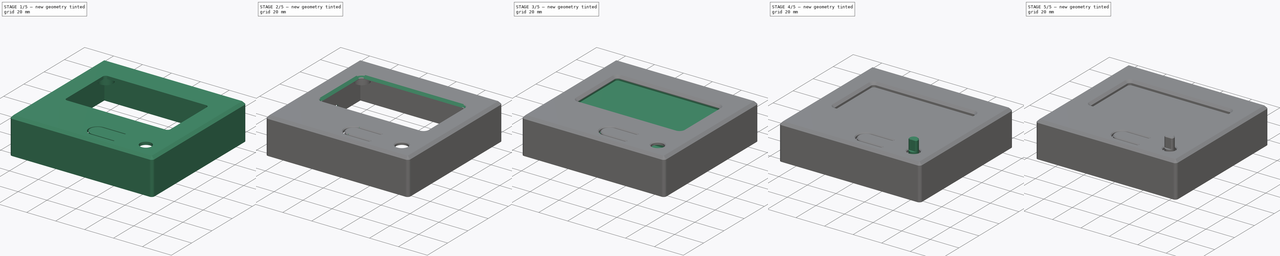
[diagram: build sequence overview — one tinted view per stage of 5, left to right]
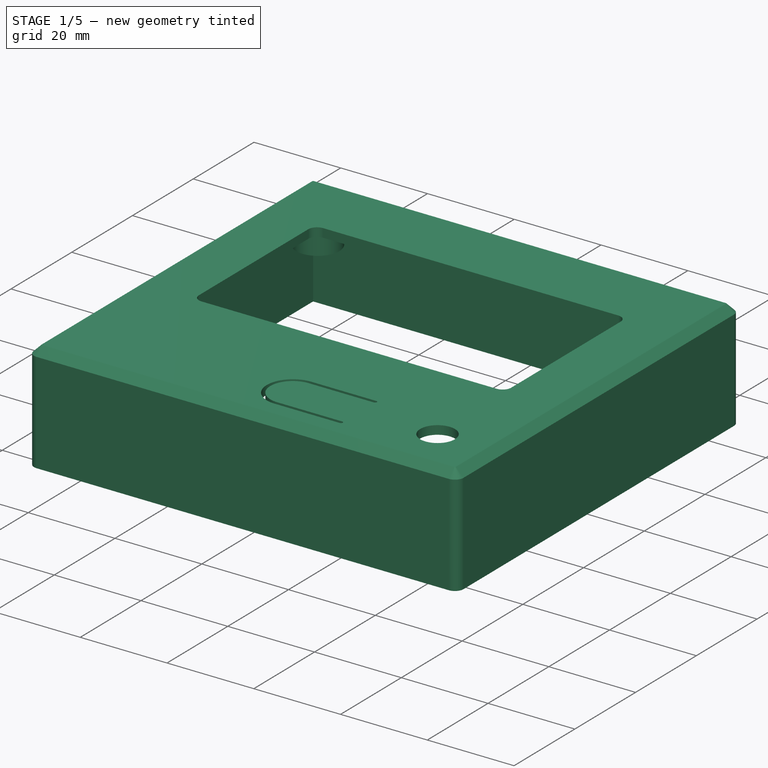
[diagram: stage 1 of 5 — iso view after this stage's code; geometry added in this stage tinted green]
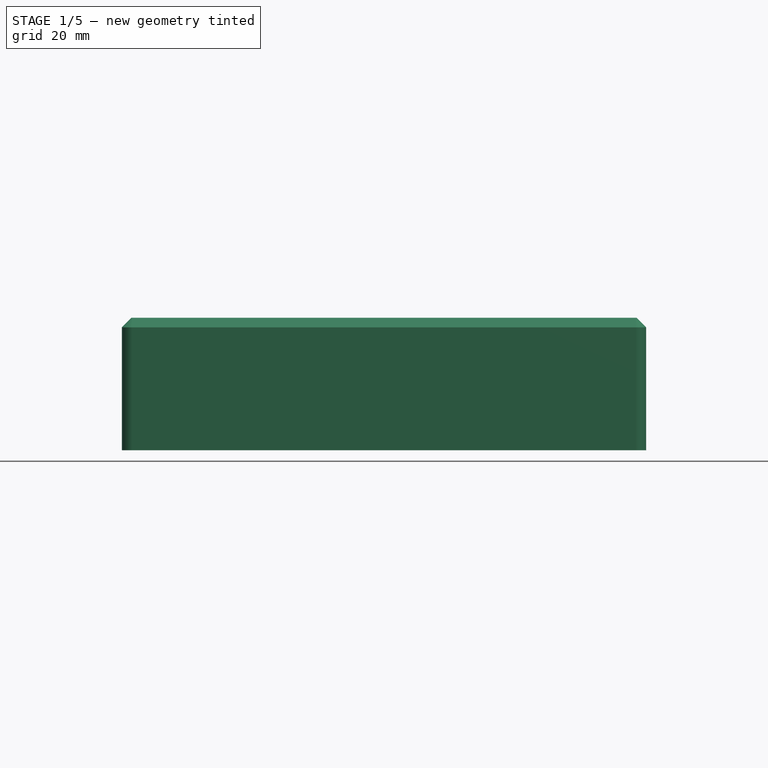
[diagram: stage 1 of 5 — front view after this stage's code; geometry added in this stage tinted green]
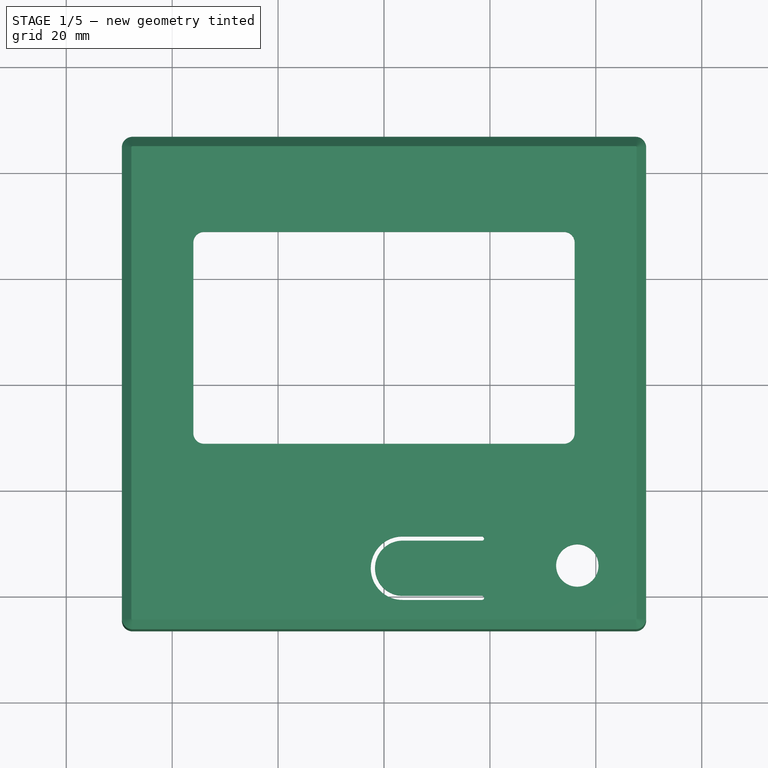
[diagram: stage 1 of 5 — top view after this stage's code; geometry added in this stage tinted green]
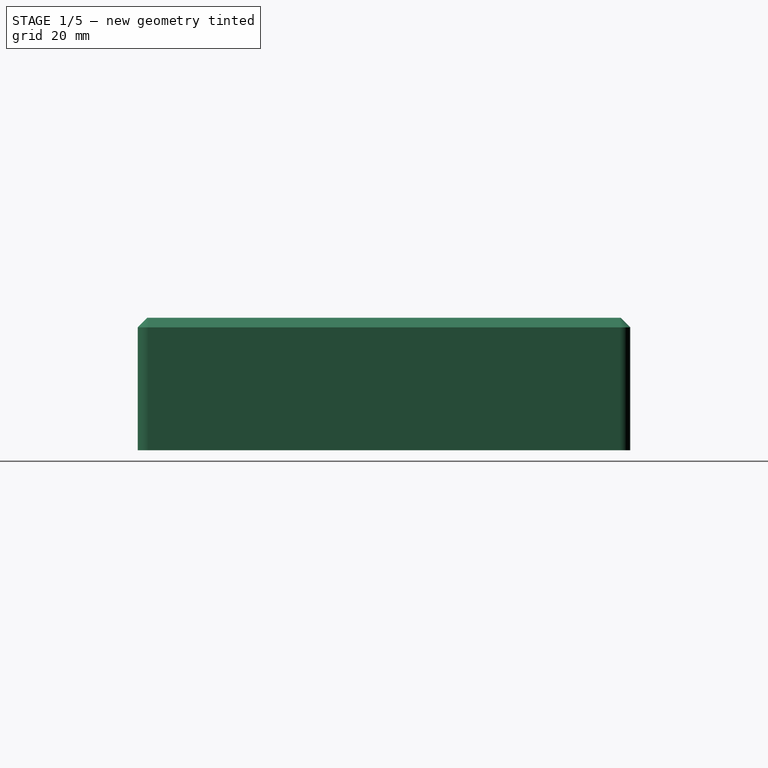
[diagram: stage 1 of 5 — right view after this stage's code; geometry added in this stage tinted green]
FCSTD DOCUMENT  (FreeCAD 0.14R3702 (Git))
Label: LCD-Case
License: CC-BY 3.0
LicenseURL: http://creativecommons.org/licenses/by/3.0/
objects: Sketcher::SketchObject×25, PartDesign::Pad×17, PartDesign::Pocket×8, PartDesign::Chamfer×7, PartDesign::Fillet×5
note: 87 computed .brp shape members not serialized (recipe doc carries the construction recipe); baked Part::Feature solids carry a one-line shape summary decoded from their .brp

FEATURE [Sketcher::SketchObject] Sketch001018
  Placement = pos=(0,0,15.2) rot=(0,0,1;0rad)
  sketch-geometry (4):
    g0: LineSegment StartX=-49.5 StartY=46.5 StartZ=0 EndX=49.5 EndY=46.5 EndZ=0
    g1: LineSegment StartX=49.5 StartY=46.5 StartZ=0 EndX=49.5 EndY=-46.5 EndZ=0
    g2: LineSegment StartX=49.5 StartY=-46.5 StartZ=0 EndX=-49.5 EndY=-46.5 EndZ=0
    g3: LineSegment StartX=-49.5 StartY=-46.5 StartZ=0 EndX=-49.5 EndY=46.5 EndZ=0
  constraints (12):
    c: Coincident(g0,g1)
    c: Coincident(g1,g2)
    c: Coincident(g2,g3)
    c: Coincident(g3,g0)
    c: Horizontal(g0)
    c: Horizontal(g2)
    c: Vertical(g1)
    c: Vertical(g3)
    c: DistanceX(g0) = 99
    c: Symmetric(g0,g0,g-2)
    c: DistanceY(g1) = -93
    c: Symmetric(g0,g1,g-1)
FEATURE [PartDesign::Pad] Pad013  label="Top-Plate"
  Length = 2
  Length2 = 100
  Placement = pos=(0,0,15.2) rot=(0,0,1;0rad)
  Sketch = -> Sketch001018
  Type = 0
FEATURE [Sketcher::SketchObject] Sketch001019
  ExternalGeometry = -> [Pad013]
  Placement = pos=(0,0,17.2) rot=(0,0,1;0rad)
  Support = -> Pad013 [Face6]
  sketch-geometry (21):
    g0: LineSegment StartX=-34 StartY=28.5 StartZ=0 EndX=34 EndY=28.5 EndZ=0
    g1: LineSegment StartX=36 StartY=26.5 StartZ=0 EndX=36 EndY=-9.5 EndZ=0
    g2: LineSegment StartX=34 StartY=-11.5 StartZ=0 EndX=-34 EndY=-11.5 EndZ=0
    g3: LineSegment StartX=-36 StartY=-9.5 StartZ=0 EndX=-36 EndY=26.5 EndZ=0
    g4: ArcOfCircle CenterX=34 CenterY=26.5 CenterZ=0 NormalX=0 NormalY=0 NormalZ=1 Radius=2 StartAngle=0 EndAngle=1.5708
    g5: ArcOfCircle CenterX=-34 CenterY=26.5 CenterZ=0 NormalX=0 NormalY=0 NormalZ=1 Radius=2 StartAngle=1.5708 EndAngle=3.14159
    g6: ArcOfCircle CenterX=-34 CenterY=-9.5 CenterZ=0 NormalX=0 NormalY=0 NormalZ=1 Radius=2 StartAngle=3.14159 EndAngle=4.71239
    g7: ArcOfCircle CenterX=34 CenterY=-9.5 CenterZ=0 NormalX=0 NormalY=0 NormalZ=1 Radius=2 StartAngle=4.71239 EndAngle=6.28319
    g8: Circle CenterX=36.5 CenterY=-34.5 CenterZ=0 NormalX=0 NormalY=0 NormalZ=1 Radius=4
    g9: ArcOfCircle CenterX=3.5 CenterY=-35 CenterZ=0 NormalX=0 NormalY=0 NormalZ=1 Radius=5.2 StartAngle=1.5708 EndAngle=4.71239
    g10: ArcOfCircle CenterX=3.5 CenterY=-35 CenterZ=0 NormalX=0 NormalY=0 NormalZ=1 Radius=6 StartAngle=1.5708 EndAngle=4.71239
    g11: LineSegment StartX=3.5 StartY=-29.8 StartZ=0 EndX=18.5 EndY=-29.8 EndZ=0
    g12: ArcOfCircle CenterX=18.5 CenterY=-29.4 CenterZ=0 NormalX=0 NormalY=0 NormalZ=1 Radius=0.4 StartAngle=4.71239 EndAngle=7.85398
    g13: LineSegment StartX=3.5 StartY=-29 StartZ=0 EndX=18.5 EndY=-29 EndZ=0
    g14: LineSegment StartX=3.5 StartY=-40.2 StartZ=0 EndX=18.5 EndY=-40.2 EndZ=0
    g15: LineSegment StartX=3.5 StartY=-41 StartZ=0 EndX=18.5 EndY=-41 EndZ=0
    g16: ArcOfCircle CenterX=18.5 CenterY=-40.6 CenterZ=0 NormalX=0 NormalY=0 NormalZ=1 Radius=0.4 StartAngle=4.71239 EndAngle=7.85398
    g17: LineSegment [constr] StartX=3.5 StartY=-29 StartZ=0 EndX=18.5 EndY=-29 EndZ=0
    g18: LineSegment [constr] StartX=18.5 StartY=-29 StartZ=0 EndX=18.5 EndY=-41 EndZ=0
    g19: LineSegment [constr] StartX=18.5 StartY=-41 StartZ=0 EndX=3.5 EndY=-41 EndZ=0
    g20: LineSegment [constr] StartX=3.5 StartY=-41 StartZ=0 EndX=3.5 EndY=-29 EndZ=0
  constraints (60):
    c: Horizontal(g0)
    c: Horizontal(g2)
    c: Vertical(g1)
    c: Vertical(g3)
    c: Tangent(g0,g4)
    c: Tangent(g1,g4)
    c: Tangent(g0,g5)
    c: Tangent(g3,g5)
    c: Tangent(g2,g6)
    c: Tangent(g3,g6)
    c: Tangent(g1,g7)
    c: Tangent(g2,g7)
    c: DistanceY(g1) = -36
    c: DistanceX(g0) = 68
    c: Radius(g5) = 2
    c: Equal(g5,g4)
    c: Equal(g4,g6)
    c: Equal(g6,g7)
    c: Symmetric(g0,g0,g-2)
    c: DistanceY(g-3,g0) = -18
    c: Radius(g8) = 4
    c: DistanceX(g8,g-4) = 13
    c: Distance(g9,g-4) = 46
    c: DistanceY(g9,g-4) = -11.5
    c: Coincident(g11,g9)
    c: Horizontal(g11)
    c: Coincident(g12,g11)
    c: Coincident(g13,g10)
    c: Coincident(g14,g9)
    c: Horizontal(g14)
    c: Coincident(g15,g10)
    c: Horizontal(g15)
    c: Coincident(g16,g15)
    c: Coincident(g16,g14)
    c: Coincident(g17,g18)
    c: Coincident(g18,g19)
    c: Coincident(g19,g20)
    c: Coincident(g20,g17)
    c: Horizontal(g17)
    c: Horizontal(g19)
    c: Vertical(g18)
    c: Vertical(g20)
    c: DistanceX(g17) = 15
    c: DistanceY(g18) = -12
    c: Equal(g16,g12)
    c: Coincident(g15,g18)
    c: Coincident(g10,g17)
    c: Coincident(g13,g12)
    c: Tangent(g13,g12)
    c: Tangent(g11,g12)
    c: Coincident(g12,g17)
    c: Tangent(g14,g16)
    c: Tangent(g15,g16)
    c: Tangent(g10,g15)
    c: Tangent(g9,g14)
    c: Tangent(g10,g13)
    c: Tangent(g9,g11)
    c: Coincident(g10,g9)
    c: Radius(g12) = 0.4
    c: DistanceY(g8,g-4) = -12
FEATURE [PartDesign::Pocket] Pocket004  label="Top-Holes"
  Length = 5
  Placement = pos=(0,0,15.2) rot=(0,0,1;0rad)
  Sketch = -> Sketch001019
  Type = 1
FEATURE [Sketcher::SketchObject] Sketch001020
  Placement = pos=(0,0,15.2) rot=(1,0,0;3.14159rad)
  Support = -> Pocket004 [Face4]
  sketch-geometry (8):
    g0: LineSegment StartX=-47.5 StartY=44.5 StartZ=0 EndX=47.5 EndY=44.5 EndZ=0
    g1: LineSegment StartX=47.5 StartY=44.5 StartZ=0 EndX=47.5 EndY=-44.5 EndZ=0
    g2: LineSegment StartX=47.5 StartY=-44.5 StartZ=0 EndX=-47.5 EndY=-44.5 EndZ=0
    g3: LineSegment StartX=-47.5 StartY=-44.5 StartZ=0 EndX=-47.5 EndY=44.5 EndZ=0
    g4: LineSegment StartX=-49.5 StartY=46.5 StartZ=0 EndX=49.5 EndY=46.5 EndZ=0
    g5: LineSegment StartX=49.5 StartY=46.5 StartZ=0 EndX=49.5 EndY=-46.5 EndZ=0
    g6: LineSegment StartX=49.5 StartY=-46.5 StartZ=0 EndX=-49.5 EndY=-46.5 EndZ=0
    g7: LineSegment StartX=-49.5 StartY=-46.5 StartZ=0 EndX=-49.5 EndY=46.5 EndZ=0
  constraints (20):
    c: Coincident(g0,g1)
    c: Coincident(g1,g2)
    c: Coincident(g2,g3)
    c: Coincident(g3,g0)
    c: Horizontal(g0)
    c: Horizontal(g2)
    c: Vertical(g1)
    c: Vertical(g3)
    c: Coincident(g4,g5)
    c: Coincident(g5,g6)
    c: Coincident(g6,g7)
    c: Coincident(g7,g4)
    c: Horizontal(g4)
    c: Horizontal(g6)
    c: Vertical(g5)
    c: Vertical(g7)
    c: DistanceY(g0,g4) = 2
    c: DistanceX(g0,g4) = 2
    c: DistanceY(g6,g2) = 2
    c: DistanceX(g2,g6) = -2
FEATURE [PartDesign::Pad] Pad014  label="Sides"
  Length = 23
  Length2 = 100
  Placement = pos=(0,0,15.2) rot=(0,0,1;0rad)
  Sketch = -> Sketch001020
  Type = 0
FEATURE [Sketcher::SketchObject] Sketch001021
  ExternalGeometry = -> [Pad014]
  Placement = pos=(0,0,15.2) rot=(1,0,0;3.14159rad)
  Support = -> Pad014 [Face27]
  sketch-geometry (14):
    g0: ArcOfCircle CenterX=-44 CenterY=-41 CenterZ=0 NormalX=0 NormalY=0 NormalZ=1 Radius=5 StartAngle=5.50779 EndAngle=8.62938
    g1: LineSegment StartX=-47.5 StartY=-37.4293 StartZ=0 EndX=-47.5 EndY=-44.5 EndZ=0
    g2: LineSegment StartX=-47.5 StartY=-44.5 StartZ=0 EndX=-40.4293 EndY=-44.5 EndZ=0
    g3: ArcOfCircle CenterX=-44 CenterY=24 CenterZ=0 NormalX=0 NormalY=0 NormalZ=1 Radius=5 StartAngle=3.93699 EndAngle=8.62938
    g4: LineSegment StartX=-47.5 StartY=27.5707 StartZ=0 EndX=-47.5 EndY=20.4293 EndZ=0
    g5: ArcOfCircle CenterX=44 CenterY=24 CenterZ=0 NormalX=0 NormalY=0 NormalZ=1 Radius=5 StartAngle=0.795399 EndAngle=5.48779
    g6: LineSegment StartX=47.5 StartY=27.5707 StartZ=0 EndX=47.5 EndY=20.4293 EndZ=0
    g7: ArcOfCircle CenterX=44 CenterY=-41 CenterZ=0 NormalX=0 NormalY=0 NormalZ=1 Radius=5 StartAngle=0.795399 EndAngle=3.91699
    g8: LineSegment StartX=47.5 StartY=-37.4293 StartZ=0 EndX=47.5 EndY=-44.5 EndZ=0
    g9: LineSegment StartX=47.5 StartY=-44.5 StartZ=0 EndX=40.4293 EndY=-44.5 EndZ=0
    g10: LineSegment [constr] StartX=-44 StartY=24 StartZ=0 EndX=44 EndY=24 EndZ=0
    g11: LineSegment [constr] StartX=44 StartY=24 StartZ=0 EndX=44 EndY=-41 EndZ=0
    g12: LineSegment [constr] StartX=44 StartY=-41 StartZ=0 EndX=-44 EndY=-41 EndZ=0
    g13: LineSegment [constr] StartX=-44 StartY=-41 StartZ=0 EndX=-44 EndY=24 EndZ=0
  constraints (41):
    c: Coincident(g1,g0)
    c: Vertical(g1)
    c: Coincident(g2,g1)
    c: Coincident(g2,g0)
    c: Horizontal(g2)
    c: Coincident(g4,g3)
    c: Coincident(g4,g3)
    c: Vertical(g4)
    c: Coincident(g6,g5)
    c: Coincident(g6,g5)
    c: Vertical(g6)
    c: Coincident(g8,g9)
    c: Coincident(g9,g7)
    c: Vertical(g8)
    c: Horizontal(g9)
    c: Coincident(g1,g-3)
    c: Radius(g0) = 5
    c: Coincident(g10,g11)
    c: Coincident(g11,g12)
    c: Coincident(g12,g13)
    c: Coincident(g13,g10)
    c: Horizontal(g10)
    c: Horizontal(g12)
    c: Vertical(g11)
    c: Vertical(g13)
    c: DistanceY(g13) = 65
    c: DistanceX(g10) = 88
    c: DistanceX(g1,g12) = 3.5
    c: DistanceY(g12,g1) = -3.5
    c: Coincident(g0,g12)
    c: Equal(g0,g3)
    c: Equal(g3,g5)
    c: Equal(g5,g7)
    c: Coincident(g3,g10)
    c: PointOnObject(g3,g-3)
    c: Coincident(g8,g7)
    c: Coincident(g8,g-4)
    c: Equal(g9,g8)
    c: Coincident(g7,g11)
    c: PointOnObject(g5,g-4)
    c: Coincident(g5,g10)
FEATURE [PartDesign::Pad] Pad015  label="PCB-Mounts"
  Length = 8.9
  Length2 = 100
  Placement = pos=(0,0,15.2) rot=(0,0,1;0rad)
  Sketch = -> Sketch001021
  Type = 0
FEATURE [Sketcher::SketchObject] Sketch001022
  ExternalGeometry = -> [Pad015]
  Placement = pos=(0,0,6.3) rot=(1,0,0;3.14159rad)
  Support = -> Pad015 [Face38]
  sketch-geometry (4):
    g0: Circle CenterX=-44 CenterY=24 CenterZ=0 NormalX=0 NormalY=0 NormalZ=1 Radius=1.3
    g1: Circle CenterX=44 CenterY=24 CenterZ=0 NormalX=0 NormalY=0 NormalZ=1 Radius=1.3
    g2: Circle CenterX=-44 CenterY=-41 CenterZ=0 NormalX=0 NormalY=0 NormalZ=1 Radius=1.3
    g3: Circle CenterX=44 CenterY=-41 CenterZ=0 NormalX=0 NormalY=0 NormalZ=1 Radius=1.3
  constraints (8):
    c: Coincident(g0,g-3)
    c: Coincident(g1,g-4)
    c: Coincident(g3,g-5)
    c: Radius(g0) = 1.3
    c: Equal(g1,g0)
    c: Equal(g0,g2)
    c: Equal(g2,g3)
    c: Coincident(g2,g-6)
FEATURE [PartDesign::Pocket] Pocket005  label="PCB-Mount-Holes"
  Length = 8.9
  Placement = pos=(0,0,15.2) rot=(0,0,1;0rad)
  Sketch = -> Sketch001022
  Type = 0
FEATURE [PartDesign::Fillet] Fillet004
  Base = -> Pocket005 [Edge68,Edge25,Edge22,Edge66,Edge24,Edge64,Edge28,Edge69]
  Placement = pos=(0,0,15.2) rot=(0,0,1;0rad)
  Radius = 2
FEATURE [PartDesign::Chamfer] Chamfer001
  Base = -> Fillet004 [Edge8,Edge6,Edge4,Edge7,Edge5,Edge3,Edge1,Edge2]
  Placement = pos=(0,0,15.2) rot=(0,0,1;0rad)
  Size = 1.8
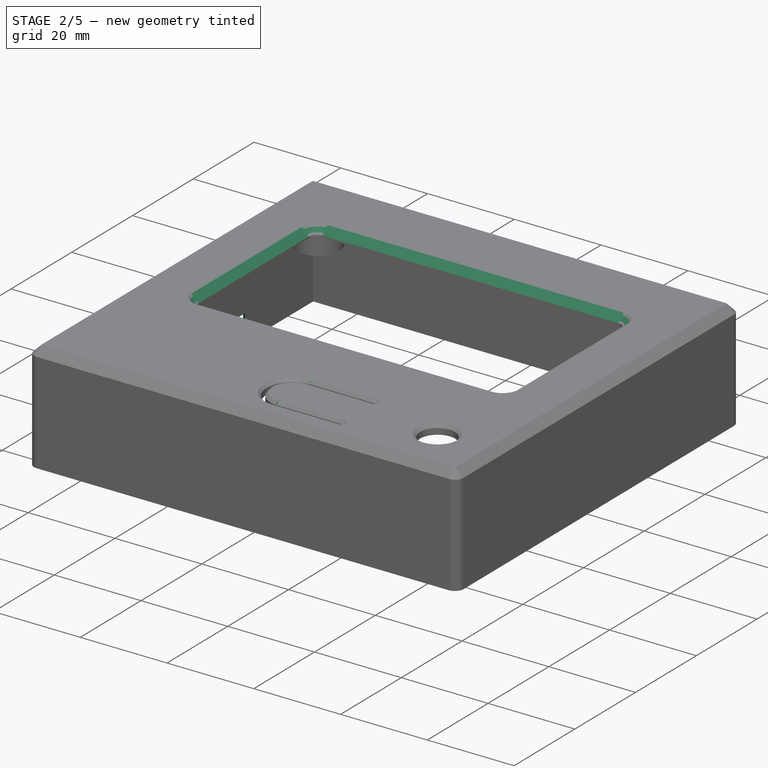
[diagram: stage 2 of 5 — iso view after this stage's code; geometry added in this stage tinted green]
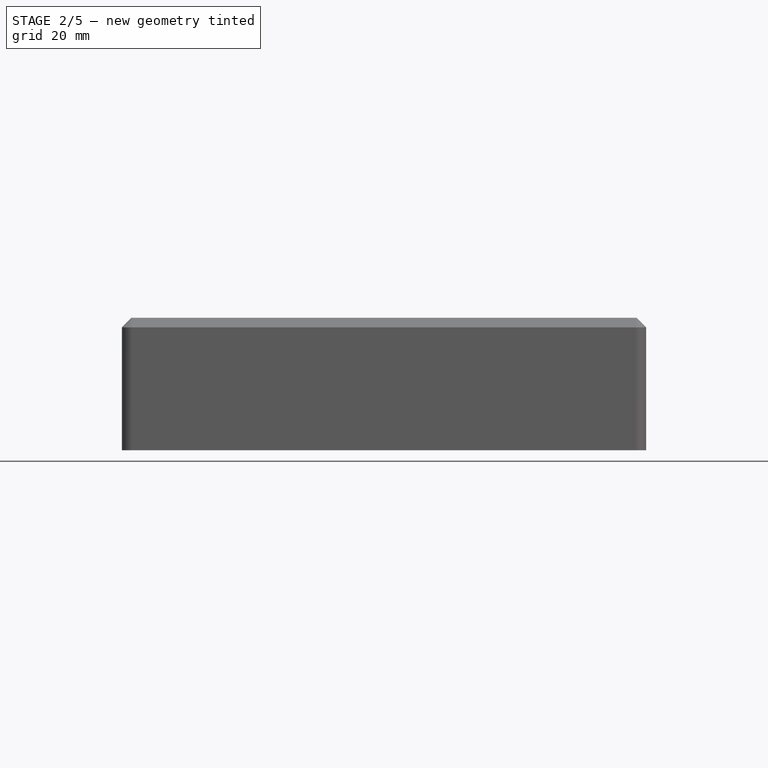
[diagram: stage 2 of 5 — front view after this stage's code; geometry added in this stage tinted green]
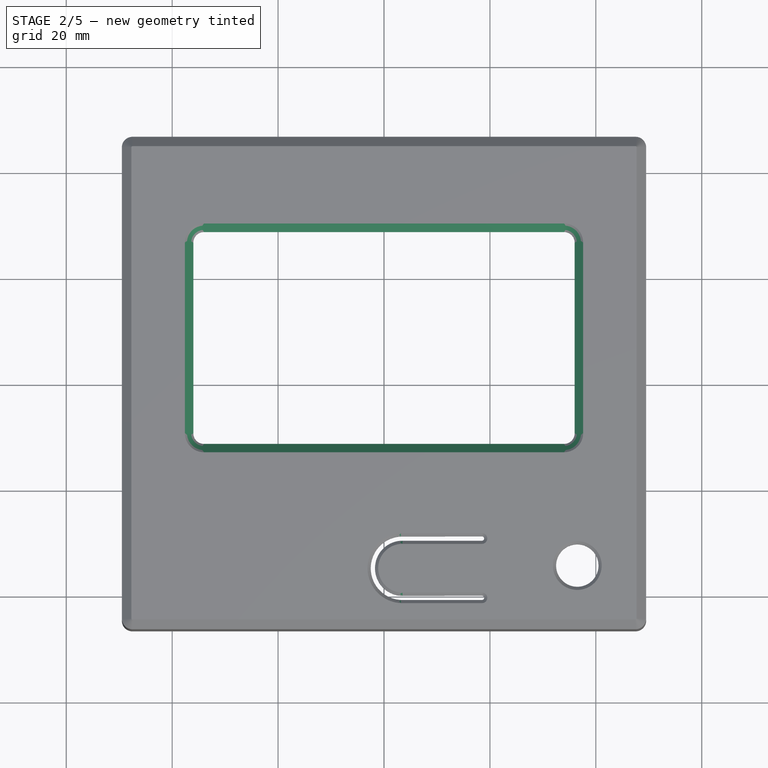
[diagram: stage 2 of 5 — top view after this stage's code; geometry added in this stage tinted green]
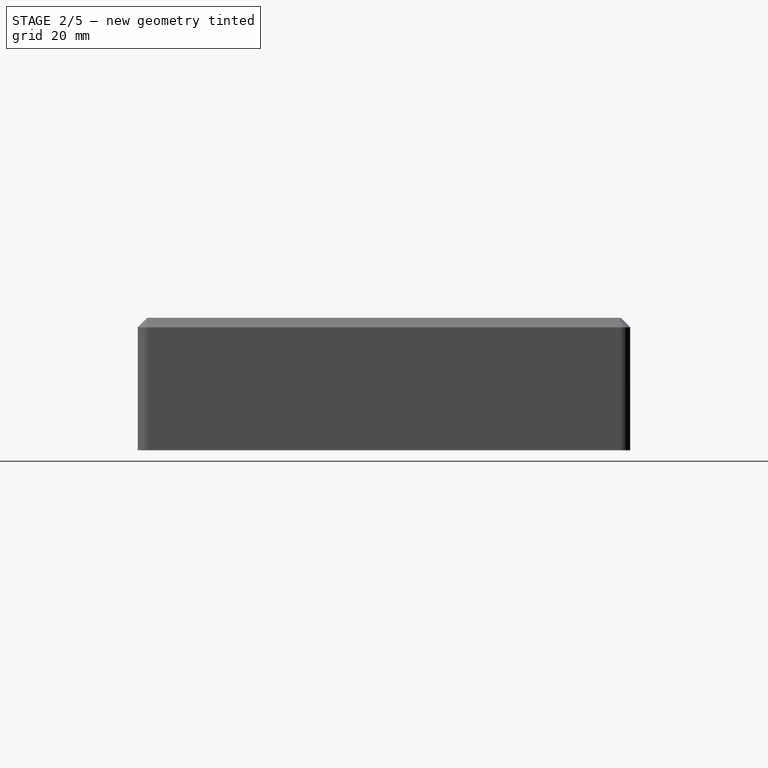
[diagram: stage 2 of 5 — right view after this stage's code; geometry added in this stage tinted green]
FEATURE [PartDesign::Chamfer] Chamfer002  label="Case-Fillets"
  Base = -> Chamfer001 [Edge24,Edge23,Edge22,Edge21,Edge17,Edge18,Edge19,Edge20]
  Placement = pos=(0,0,15.2) rot=(0,0,1;0rad)
  Size = 1.6
FEATURE [Sketcher::SketchObject] Sketch001023
  ExternalGeometry = -> [Chamfer002]
  Placement = pos=(0,0,15.2) rot=(1,0,0;3.14159rad)
  Support = -> Chamfer002 [Face43]
  sketch-geometry (1):
    g0: Circle CenterX=3.5 CenterY=35 CenterZ=0 NormalX=0 NormalY=0 NormalZ=1 Radius=4
  constraints (2):
    c: Coincident(g0,g-3)
    c: Radius(g0) = 4
FEATURE [PartDesign::Pad] Pad016  label="Emergency-Button"
  Length = 10
  Length2 = 100
  Placement = pos=(0,0,15.2) rot=(0,0,1;0rad)
  Sketch = -> Sketch001023
  Type = 0
FEATURE [PartDesign::Chamfer] Chamfer003
  Base = -> Pad016 [Edge2]
  Placement = pos=(0,0,15.2) rot=(0,0,1;0rad)
  Size = 1
FEATURE [Sketcher::SketchObject] Sketch001024
  ExternalGeometry = -> [Chamfer003]
  Placement = pos=(0,0,15.2) rot=(1,0,0;3.14159rad)
  Support = -> Chamfer003 [Face4]
  sketch-geometry (4):
    g0: LineSegment StartX=11.5 StartY=44.5 StartZ=0 EndX=31.5 EndY=44.5 EndZ=0
    g1: LineSegment StartX=31.5 StartY=44.5 StartZ=0 EndX=31.5 EndY=24.5 EndZ=0
    g2: LineSegment StartX=31.5 StartY=24.5 StartZ=0 EndX=11.5 EndY=24.5 EndZ=0
    g3: LineSegment StartX=11.5 StartY=24.5 StartZ=0 EndX=11.5 EndY=44.5 EndZ=0
  constraints (12):
    c: Coincident(g0,g1)
    c: Coincident(g1,g2)
    c: Coincident(g2,g3)
    c: Coincident(g3,g0)
    c: Horizontal(g0)
    c: Horizontal(g2)
    c: Vertical(g1)
    c: Vertical(g3)
    c: DistanceX(g2) = -20
    c: DistanceY(g1) = -20
    c: PointOnObject(g0,g-3)
    c: DistanceX(g-3,g0) = -16
FEATURE [PartDesign::Pocket] Pocket006
  Length = 1.2
  Placement = pos=(0,0,15.2) rot=(0,0,1;0rad)
  Sketch = -> Sketch001024
  Type = 0
FEATURE [Sketcher::SketchObject] Sketch001025
  Placement = pos=(0,0,-7.8) rot=(1,0,0;3.14159rad)
  Support = -> Pocket006 [Face71]
  sketch-geometry (4):
    g0: LineSegment StartX=-50.5 StartY=6 StartZ=0 EndX=-46.5 EndY=6 EndZ=0
    g1: LineSegment StartX=-46.5 StartY=6 StartZ=0 EndX=-46.5 EndY=-22.5 EndZ=0
    g2: LineSegment StartX=-46.5 StartY=-22.5 StartZ=0 EndX=-50.5 EndY=-22.5 EndZ=0
    g3: LineSegment StartX=-50.5 StartY=-22.5 StartZ=0 EndX=-50.5 EndY=6 EndZ=0
  constraints (10):
    c: Coincident(g0,g1)
    c: Coincident(g1,g2)
    c: Coincident(g2,g3)
    c: Coincident(g3,g0)
    c: Horizontal(g0)
    c: Horizontal(g2)
    c: Vertical(g1)
    c: Vertical(g3)
    c: DistanceY(g3) = 28.5
    c: DistanceX(g0) = 4
FEATURE [PartDesign::Pocket] Pocket007
  Length = 6.1
  Placement = pos=(0,0,15.2) rot=(0,0,1;0rad)
  Sketch = -> Sketch001025
  Type = 0
FEATURE [PartDesign::Chamfer] Chamfer004
  Base = -> Pocket007 [Edge161,Edge162,Edge163]
  Placement = pos=(0,0,15.2) rot=(0,0,1;0rad)
  Size = 1.8
FEATURE [PartDesign::Chamfer] Chamfer005
  Base = -> Chamfer004 [Edge148,Edge141,Edge142,Edge143,Edge147,Edge146,Edge144,Edge145]
  Placement = pos=(0,0,15.2) rot=(0,0,1;0rad)
  Size = 0.6
FEATURE [PartDesign::Chamfer] Chamfer006
  Base = -> Chamfer005 [Edge25]
  Placement = pos=(0,0,15.2) rot=(0,0,1;0rad)
  Size = 0.6
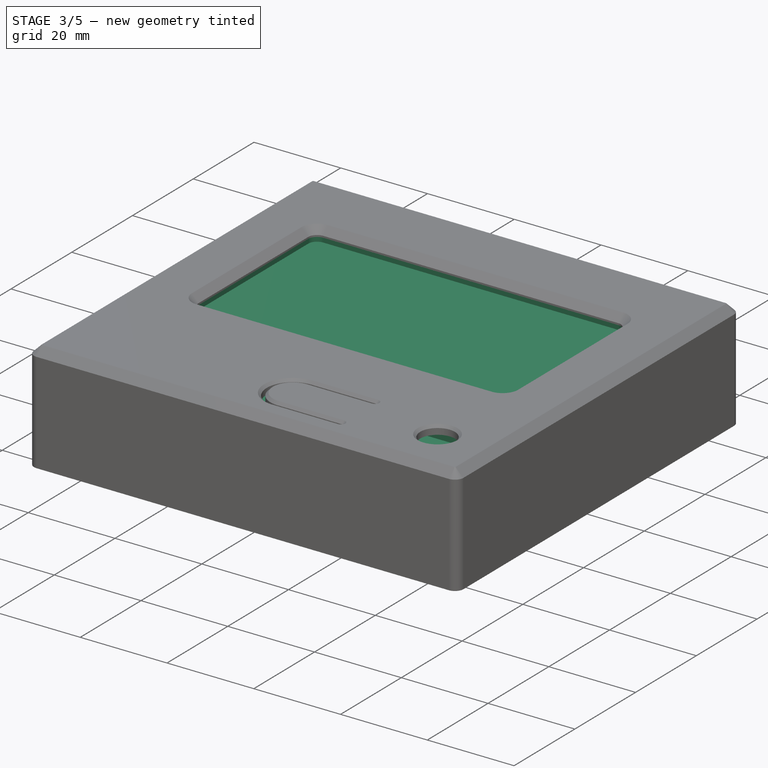
[diagram: stage 3 of 5 — iso view after this stage's code; geometry added in this stage tinted green]
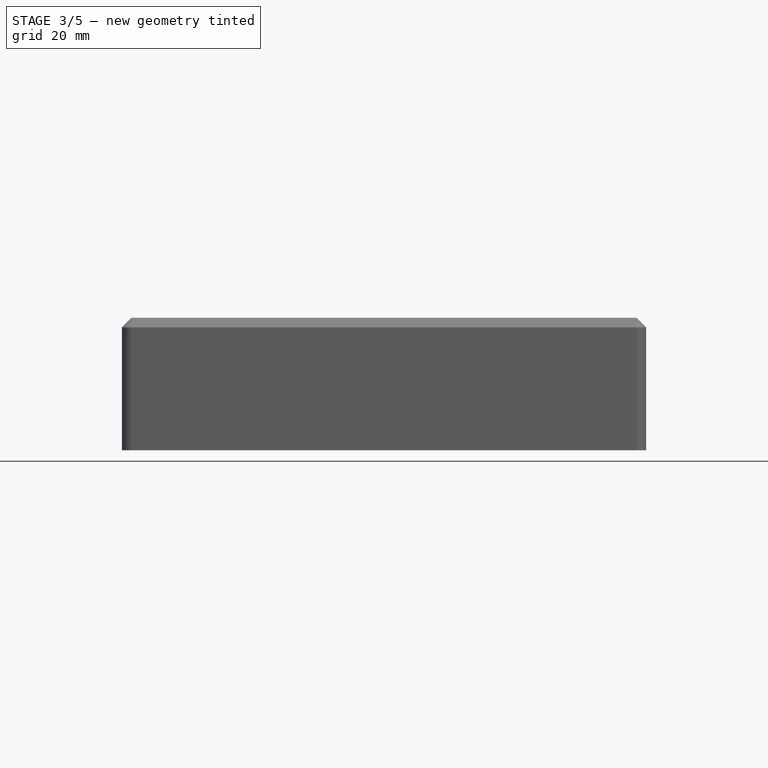
[diagram: stage 3 of 5 — front view after this stage's code; geometry added in this stage tinted green]
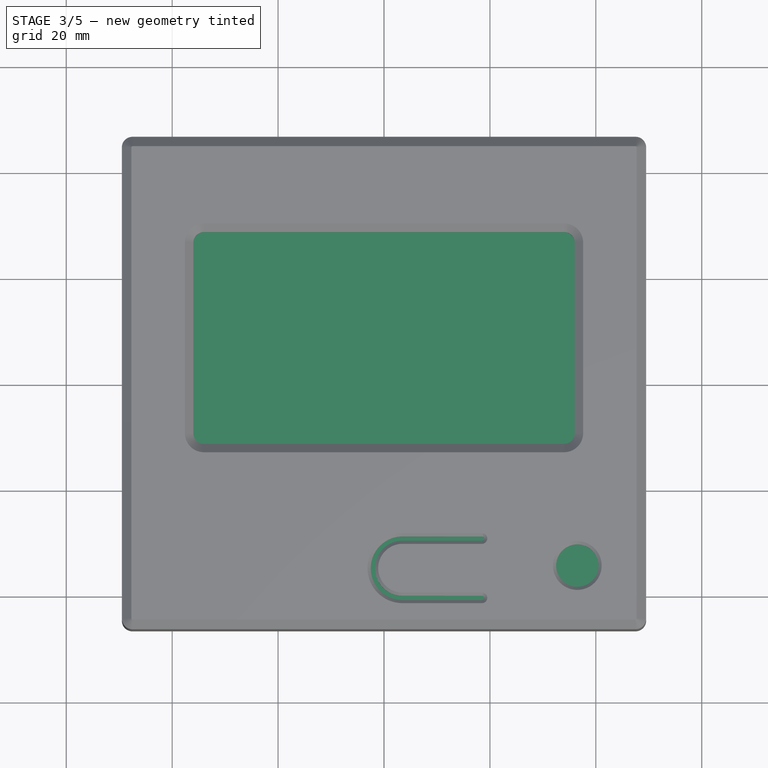
[diagram: stage 3 of 5 — top view after this stage's code; geometry added in this stage tinted green]
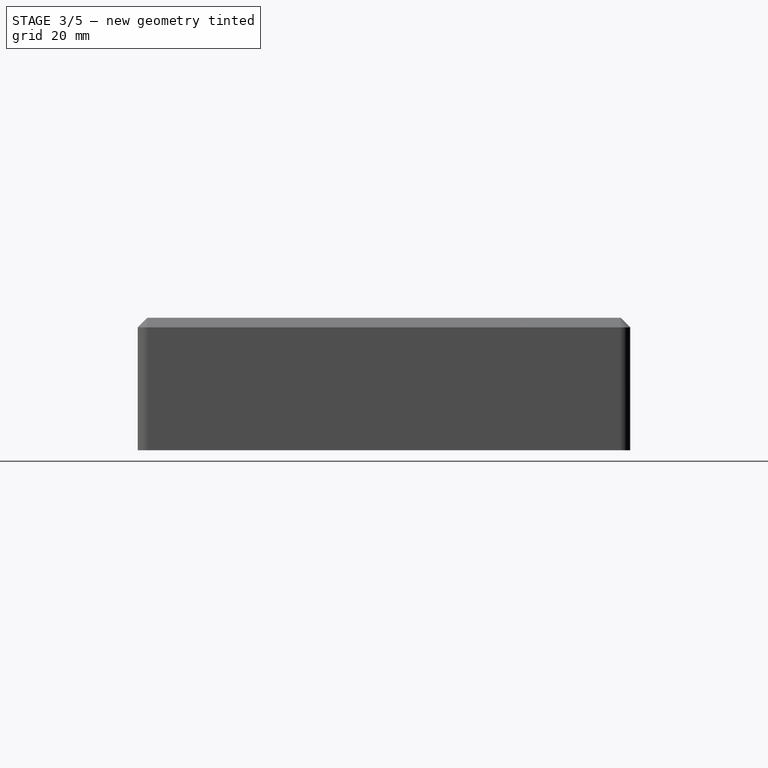
[diagram: stage 3 of 5 — right view after this stage's code; geometry added in this stage tinted green]
FEATURE [Sketcher::SketchObject] Sketch
  sketch-geometry (12):
    g0: LineSegment StartX=-46.5 StartY=43.5 StartZ=0 EndX=46.5 EndY=43.5 EndZ=0
    g1: LineSegment StartX=46.5 StartY=43.5 StartZ=0 EndX=46.5 EndY=-43.5 EndZ=0
    g2: LineSegment StartX=46.5 StartY=-43.5 StartZ=0 EndX=-46.5 EndY=-43.5 EndZ=0
    g3: LineSegment StartX=-46.5 StartY=-43.5 StartZ=0 EndX=-46.5 EndY=43.5 EndZ=0
    g4: Circle CenterX=-44 CenterY=41 CenterZ=0 NormalX=0 NormalY=0 NormalZ=1 Radius=1.5
    g5: Circle CenterX=44 CenterY=41 CenterZ=0 NormalX=0 NormalY=0 NormalZ=1 Radius=1.5
    g6: Circle CenterX=-44 CenterY=-24 CenterZ=0 NormalX=0 NormalY=0 NormalZ=1 Radius=1.5
    g7: Circle CenterX=44 CenterY=-24 CenterZ=0 NormalX=0 NormalY=0 NormalZ=1 Radius=1.5
    g8: LineSegment [constr] StartX=-44 StartY=41 StartZ=0 EndX=44 EndY=41 EndZ=0
    g9: LineSegment [constr] StartX=44 StartY=41 StartZ=0 EndX=44 EndY=-24 EndZ=0
    g10: LineSegment [constr] StartX=44 StartY=-24 StartZ=0 EndX=-44 EndY=-24 EndZ=0
    g11: LineSegment [constr] StartX=-44 StartY=-24 StartZ=0 EndX=-44 EndY=41 EndZ=0
  constraints (31):
    c: Coincident(g0,g1)
    c: Coincident(g1,g2)
    c: Coincident(g2,g3)
    c: Coincident(g3,g0)
    c: Horizontal(g0)
    c: Horizontal(g2)
    c: Vertical(g1)
    c: Vertical(g3)
    c: DistanceX(g0) = 93
    c: Symmetric(g0,g1,g-1)
    c: Radius(g4) = 1.5
    c: Equal(g4,g5)
    c: Equal(g5,g7)
    c: Equal(g7,g6)
    c: Distance(g4,g3) = 2.5
    c: Coincident(g8,g9)
    c: Coincident(g9,g10)
    c: Coincident(g10,g11)
    c: Coincident(g11,g8)
    c: Horizontal(g8)
    c: Horizontal(g10)
    c: Vertical(g9)
    c: Vertical(g11)
    c: Coincident(g8,g4)
    c: Coincident(g9,g7)
    c: Coincident(g6,g10)
    c: Coincident(g8,g5)
    c: DistanceX(g8) = 88
    c: DistanceY(g11) = 65
    c: Distance(g4,g0) = 2.5
    c: DistanceY(g3) = 87
FEATURE [PartDesign::Pad] Pad  label="White-Circuit-Board"
  Length = 1.7
  Length2 = 100
  Reversed = true
  Sketch = -> Sketch
  Type = 0
FEATURE [Sketcher::SketchObject] Sketch001004
  Placement = pos=(0,0,4.6) rot=(0,0,1;0rad)
  sketch-geometry (12):
    g0: LineSegment StartX=-46.5 StartY=43.5 StartZ=0 EndX=46.5 EndY=43.5 EndZ=0
    g1: LineSegment StartX=46.5 StartY=43.5 StartZ=0 EndX=46.5 EndY=-26.5 EndZ=0
    g2: LineSegment StartX=46.5 StartY=-26.5 StartZ=0 EndX=-46.5 EndY=-26.5 EndZ=0
    g3: LineSegment StartX=-46.5 StartY=-26.5 StartZ=0 EndX=-46.5 EndY=43.5 EndZ=0
    g4: Circle CenterX=-44 CenterY=41 CenterZ=0 NormalX=0 NormalY=0 NormalZ=1 Radius=1.5
    g5: Circle CenterX=44 CenterY=41 CenterZ=0 NormalX=0 NormalY=0 NormalZ=1 Radius=1.5
    g6: Circle CenterX=-44 CenterY=-24 CenterZ=0 NormalX=0 NormalY=0 NormalZ=1 Radius=1.5
    g7: Circle CenterX=44 CenterY=-24 CenterZ=0 NormalX=0 NormalY=0 NormalZ=1 Radius=1.5
    g8: LineSegment [constr] StartX=-44 StartY=41 StartZ=0 EndX=44 EndY=41 EndZ=0
    g9: LineSegment [constr] StartX=44 StartY=41 StartZ=0 EndX=44 EndY=-24 EndZ=0
    g10: LineSegment [constr] StartX=44 StartY=-24 StartZ=0 EndX=-44 EndY=-24 EndZ=0
    g11: LineSegment [constr] StartX=-44 StartY=-24 StartZ=0 EndX=-44 EndY=41 EndZ=0
  constraints (32):
    c: Coincident(g0,g1)
    c: Coincident(g1,g2)
    c: Coincident(g2,g3)
    c: Coincident(g3,g0)
    c: Horizontal(g0)
    c: Horizontal(g2)
    c: Vertical(g1)
    c: Vertical(g3)
    c: DistanceX(g0) = 93
    c: Symmetric(g0,g0,g-2)
    c: DistanceY(g1) = -70
    c: DistanceY(g-1,g0) = 43.5
    c: Coincident(g8,g9)
    c: Coincident(g9,g10)
    c: Coincident(g10,g11)
    c: Coincident(g11,g8)
    c: Horizontal(g8)
    c: Horizontal(g10)
    c: Vertical(g9)
    c: Vertical(g11)
    c: Symmetric(g8,g8,g-2)
    c: Distance(g8,g0) = 2.5
    c: Distance(g8,g3) = 2.5
    c: Distance(g10,g2) = 2.5
    c: Coincident(g4,g8)
    c: Coincident(g5,g8)
    c: Coincident(g7,g9)
    c: Coincident(g10,g6)
    c: Radius(g4) = 1.5
    c: Equal(g4,g5)
    c: Equal(g5,g7)
    c: Equal(g7,g6)
FEATURE [PartDesign::Pad] Pad002  label="Green-Circuit-Board"
  Length = 1.7
  Length2 = 100
  Placement = pos=(0,0,4.6) rot=(0,0,1;0rad)
  Sketch = -> Sketch001004
  Type = 0
FEATURE [Sketcher::SketchObject] Sketch001005
  ExternalGeometry = -> [Pad002]
  Placement = pos=(0,0,6.3) rot=(0,0,1;0rad)
  Support = -> Pad002 [Face10]
  sketch-geometry (4):
    g0: LineSegment StartX=-39.3 StartY=34.1 StartZ=0 EndX=39.3 EndY=34.1 EndZ=0
    g1: LineSegment StartX=39.3 StartY=34.1 StartZ=0 EndX=39.3 EndY=-17.1 EndZ=0
    g2: LineSegment StartX=39.3 StartY=-17.1 StartZ=0 EndX=-39.3 EndY=-17.1 EndZ=0
    g3: LineSegment StartX=-39.3 StartY=-17.1 StartZ=0 EndX=-39.3 EndY=34.1 EndZ=0
  constraints (12):
    c: Coincident(g0,g1)
    c: Coincident(g1,g2)
    c: Coincident(g2,g3)
    c: Coincident(g3,g0)
    c: Horizontal(g0)
    c: Horizontal(g2)
    c: Vertical(g1)
    c: Vertical(g3)
    c: DistanceX(g0) = 78.6
    c: Symmetric(g0,g0,g-2)
    c: DistanceY(g1) = -51.2
    c: DistanceY(g0,g-3) = 9.4
FEATURE [PartDesign::Pad] Pad003  label="LCD-Bezel"
  Length = 8.9
  Length2 = 100
  Placement = pos=(0,0,4.6) rot=(0,0,1;0rad)
  Sketch = -> Sketch001005
  Type = 0
FEATURE [Sketcher::SketchObject] Sketch001006
  ExternalGeometry = -> [Pad003]
  Placement = pos=(0,0,6.3) rot=(0,0,1;0rad)
  Support = -> Pad003 [Face5]
  sketch-geometry (4):
    g0: LineSegment StartX=-44.5 StartY=30.4 StartZ=0 EndX=-37.5 EndY=30.4 EndZ=0
    g1: LineSegment StartX=-37.5 StartY=30.4 StartZ=0 EndX=-37.5 EndY=-13.6 EndZ=0
    g2: LineSegment StartX=-37.5 StartY=-13.6 StartZ=0 EndX=-44.5 EndY=-13.6 EndZ=0
    g3: LineSegment StartX=-44.5 StartY=-13.6 StartZ=0 EndX=-44.5 EndY=30.4 EndZ=0
  constraints (12):
    c: Coincident(g0,g1)
    c: Coincident(g1,g2)
    c: Coincident(g2,g3)
    c: Coincident(g3,g0)
    c: Horizontal(g0)
    c: Horizontal(g2)
    c: Vertical(g1)
    c: Vertical(g3)
    c: DistanceY(g3) = 44
    c: Distance(g0,g-3) = 2
    c: DistanceX(g0) = 7
    c: DistanceY(g0,g-4) = 3.7
FEATURE [PartDesign::Pad] Pad004  label="Backlight"
  Length = 3.6
  Length2 = 100
  Placement = pos=(0,0,4.6) rot=(0,0,1;0rad)
  Sketch = -> Sketch001006
  Type = 0
FEATURE [Sketcher::SketchObject] Sketch001007
  ExternalGeometry = -> [Pad]
  Support = -> Pad [Face9]
  sketch-geometry (4):
    g0: LineSegment StartX=0.5 StartY=-32 StartZ=0 EndX=6.5 EndY=-32 EndZ=0
    g1: LineSegment StartX=6.5 StartY=-32 StartZ=0 EndX=6.5 EndY=-38 EndZ=0
    g2: LineSegment StartX=6.5 StartY=-38 StartZ=0 EndX=0.5 EndY=-38 EndZ=0
    g3: LineSegment StartX=0.5 StartY=-38 StartZ=0 EndX=0.5 EndY=-32 EndZ=0
  constraints (13):
    c: Coincident(g0,g1)
    c: Coincident(g1,g2)
    c: Coincident(g2,g3)
    c: Coincident(g3,g0)
    c: Horizontal(g0)
    c: Horizontal(g2)
    c: Vertical(g1)
    c: Vertical(g3)
    c: DistanceX(g2) = -6
    c: DistanceY(g1) = -6
    c: DistanceX(g1,g-3) = 40
    c: DistanceX(g1) = 6.5
    c: DistanceY(g1,g-3) = -5.5
FEATURE [PartDesign::Pad] Pad005  label="PushButton-Case"
  Length = 3.5
  Length2 = 100
  Sketch = -> Sketch001007
  Type = 0
FEATURE [PartDesign::Fillet] Fillet003
  Base = -> Pad004 [Edge48,Edge34,Edge37,Edge41]
  Placement = pos=(0,0,4.6) rot=(0,0,1;0rad)
  Radius = 0.5
FEATURE [PartDesign::Pocket] Pocket002  label="LCD-and-PCB"
  Length = 1
  Placement = pos=(0,0,4.6) rot=(0,0,1;0rad)
  Sketch = -> Sketch001014
  Type = 0
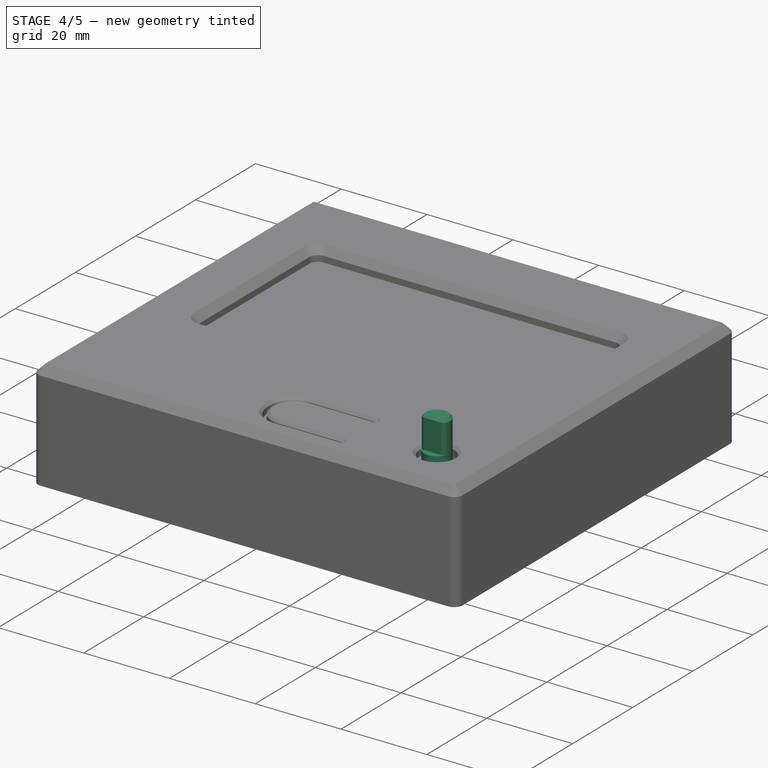
[diagram: stage 4 of 5 — iso view after this stage's code; geometry added in this stage tinted green]
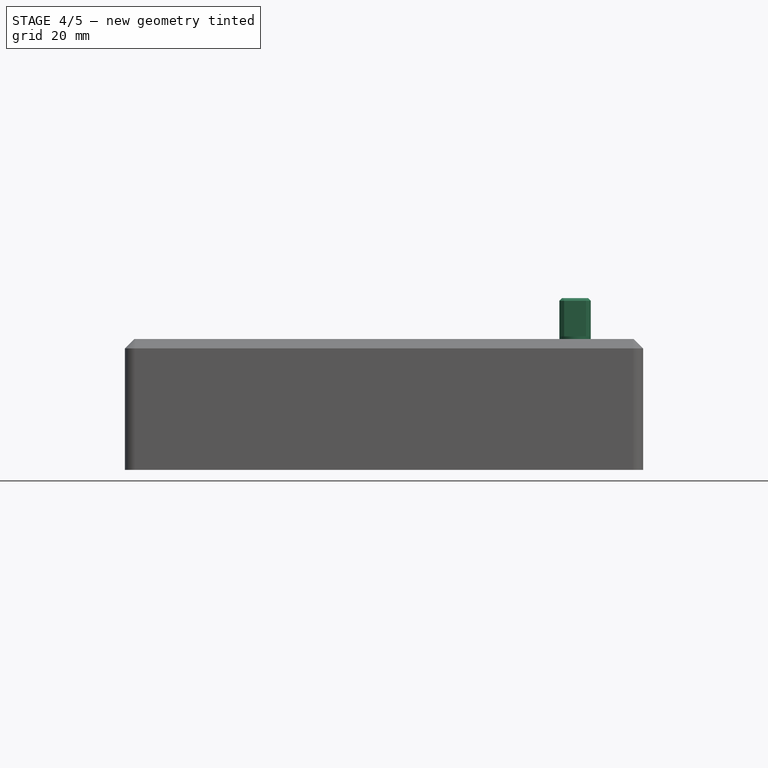
[diagram: stage 4 of 5 — front view after this stage's code; geometry added in this stage tinted green]
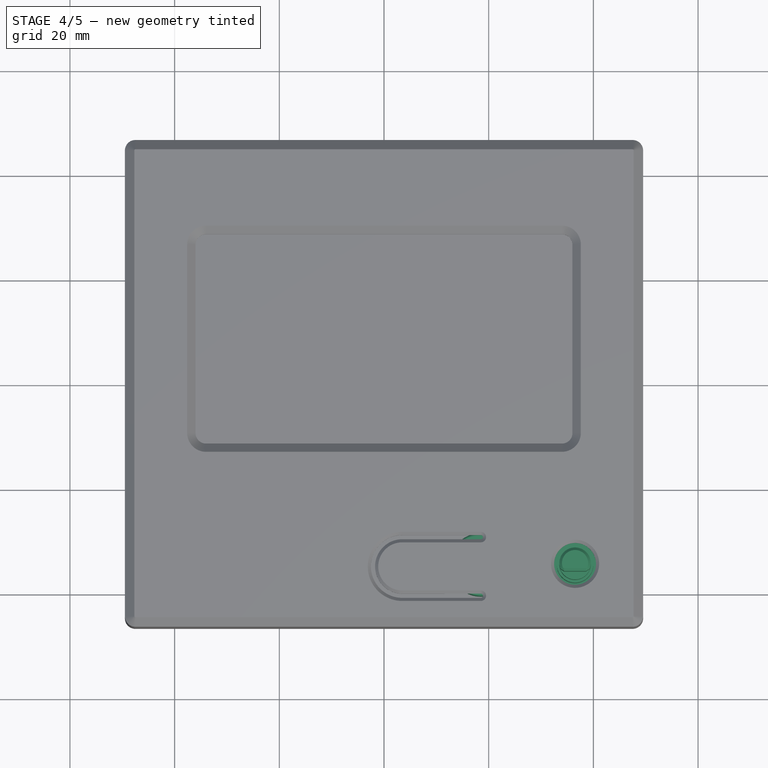
[diagram: stage 4 of 5 — top view after this stage's code; geometry added in this stage tinted green]
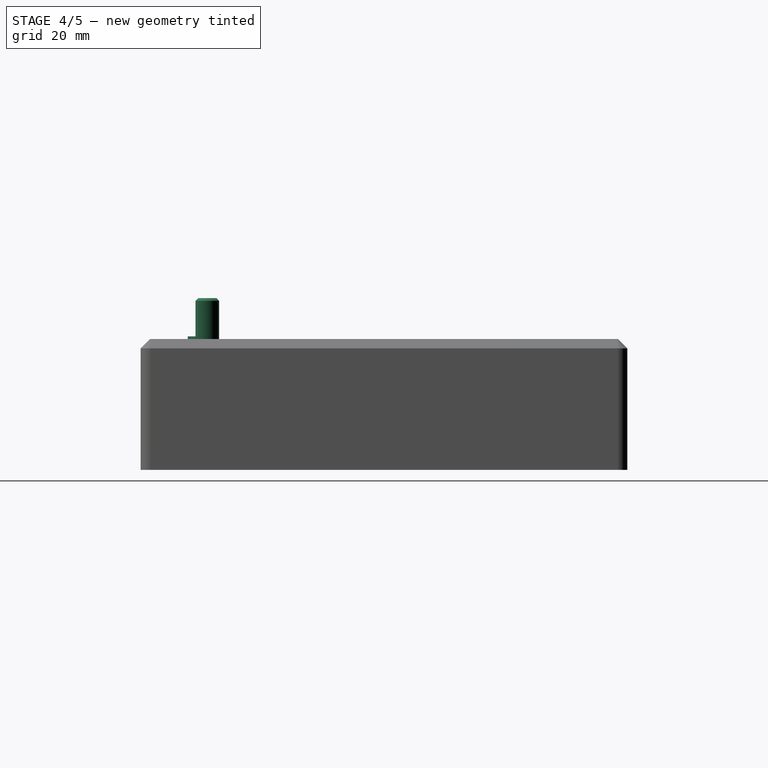
[diagram: stage 4 of 5 — right view after this stage's code; geometry added in this stage tinted green]
FEATURE [Sketcher::SketchObject] Sketch001008  label="PushButton-Button-Sketch"
  ExternalGeometry = -> [Pad005]
  Placement = pos=(0,0,3.5) rot=(0,0,1;0rad)
  Support = -> Pad005 [Face15]
  sketch-geometry (1):
    g0: Circle CenterX=3.5 CenterY=-34.8657 CenterZ=0 NormalX=0 NormalY=0 NormalZ=1 Radius=1.75
  constraints (2):
    c: Symmetric(g-4,g-3,g0)
    c: Radius(g0) = 1.75
FEATURE [PartDesign::Pad] Pad006  label="PushButton-Button"
  Length = 1
  Length2 = 100
  Sketch = -> Sketch001008
  Type = 0
FEATURE [Sketcher::SketchObject] Sketch001009
  ExternalGeometry = -> [Pad006]
  Support = -> Pad006 [Face4]
  sketch-geometry (1):
    g0: Circle CenterX=18.5 CenterY=-34.5 CenterZ=0 NormalX=0 NormalY=0 NormalZ=1 Radius=6
  constraints (3):
    c: Radius(g0) = 6
    c: DistanceX(g0,g-3) = 28
    c: DistanceY(g0,g-3) = -9
FEATURE [PartDesign::Pad] Pad007  label="Piezo"
  Length = 9.8
  Length2 = 100
  Sketch = -> Sketch001009
  Type = 0
FEATURE [Sketcher::SketchObject] Sketch001010
  ExternalGeometry = -> [Pad007]
  Support = -> Pad007 [Face4]
  sketch-geometry (4):
    g0: LineSegment StartX=30.5 StartY=-28.5 StartZ=0 EndX=42.5 EndY=-28.5 EndZ=0
    g1: LineSegment StartX=42.5 StartY=-28.5 StartZ=0 EndX=42.5 EndY=-40.5 EndZ=0
    g2: LineSegment StartX=42.5 StartY=-40.5 StartZ=0 EndX=30.5 EndY=-40.5 EndZ=0
    g3: LineSegment StartX=30.5 StartY=-40.5 StartZ=0 EndX=30.5 EndY=-28.5 EndZ=0
  constraints (12):
    c: Coincident(g0,g1)
    c: Coincident(g1,g2)
    c: Coincident(g2,g3)
    c: Coincident(g3,g0)
    c: Horizontal(g0)
    c: Horizontal(g2)
    c: Vertical(g1)
    c: Vertical(g3)
    c: DistanceX(g0) = 12
    c: DistanceY(g1) = -12
    c: Distance(g1,g-3) = 4
    c: DistanceY(g1,g-3) = -3
FEATURE [PartDesign::Pad] Pad008  label="Rotary-Base"
  Length = 4.7
  Length2 = 100
  Sketch = -> Sketch001010
  Type = 0
FEATURE [Sketcher::SketchObject] Sketch001011
  ExternalGeometry = -> [Pad008]
  Placement = pos=(0,0,4.7) rot=(0,0,1;0rad)
  Support = -> Pad008 [Face22]
  sketch-geometry (1):
    g0: Circle CenterX=36.5 CenterY=-34.5 CenterZ=0 NormalX=0 NormalY=0 NormalZ=1 Radius=3.5
  constraints (2):
    c: Symmetric(g-3,g-4,g0)
    c: Radius(g0) = 3.5
FEATURE [PartDesign::Pad] Pad009  label="Rotary-Shaft-Base"
  Length = 7
  Length2 = 100
  Sketch = -> Sketch001011
  Type = 0
FEATURE [Sketcher::SketchObject] Sketch001012
  ExternalGeometry = -> [Pad009]
  Placement = pos=(0,0,11.7) rot=(0,0,1;0rad)
  Support = -> Pad009 [Face26]
  sketch-geometry (1):
    g0: Circle CenterX=36.5 CenterY=-34.5 CenterZ=0 NormalX=0 NormalY=0 NormalZ=1 Radius=3
  constraints (2):
    c: Coincident(g0,g-3)
    c: Radius(g0) = 3
FEATURE [PartDesign::Pad] Pad010  label="Rotary-Shaft"
  Length = 13.3
  Length2 = 100
  Sketch = -> Sketch001012
  Type = 0
FEATURE [Sketcher::SketchObject] Sketch001013
  ExternalGeometry = -> [Pad010]
  Placement = pos=(0,0,25) rot=(0,0,1;0rad)
  Support = -> Pad010 [Face28]
  sketch-geometry (4):
    g0: LineSegment StartX=33 StartY=-36 StartZ=0 EndX=40 EndY=-36 EndZ=0
    g1: LineSegment StartX=40 StartY=-36 StartZ=0 EndX=40 EndY=-38 EndZ=0
    g2: LineSegment StartX=40 StartY=-38 StartZ=0 EndX=33 EndY=-38 EndZ=0
    g3: LineSegment StartX=33 StartY=-38 StartZ=0 EndX=33 EndY=-36 EndZ=0
  constraints (12):
    c: Coincident(g0,g1)
    c: Coincident(g1,g2)
    c: Coincident(g2,g3)
    c: Coincident(g3,g0)
    c: Horizontal(g0)
    c: Horizontal(g2)
    c: Vertical(g1)
    c: Vertical(g3)
    c: DistanceY(g-3,g0) = -1.5
    c: DistanceY(g1) = -2
    c: DistanceX(g2) = -7
    c: DistanceX(g0,g-3) = 3.5
FEATURE [PartDesign::Pocket] Pocket001  label="Rotary-Shaft-Flat"
  Length = 7.3
  Sketch = -> Sketch001013
  Type = 0
FEATURE [PartDesign::Chamfer] Chamfer
  Base = -> Pocket001 [Edge64,Edge60,Edge65,Edge63,Edge61]
  Size = 0.5
FEATURE [PartDesign::Fillet] Fillet002
  Base = -> Chamfer [Edge81]
  Radius = 0.5
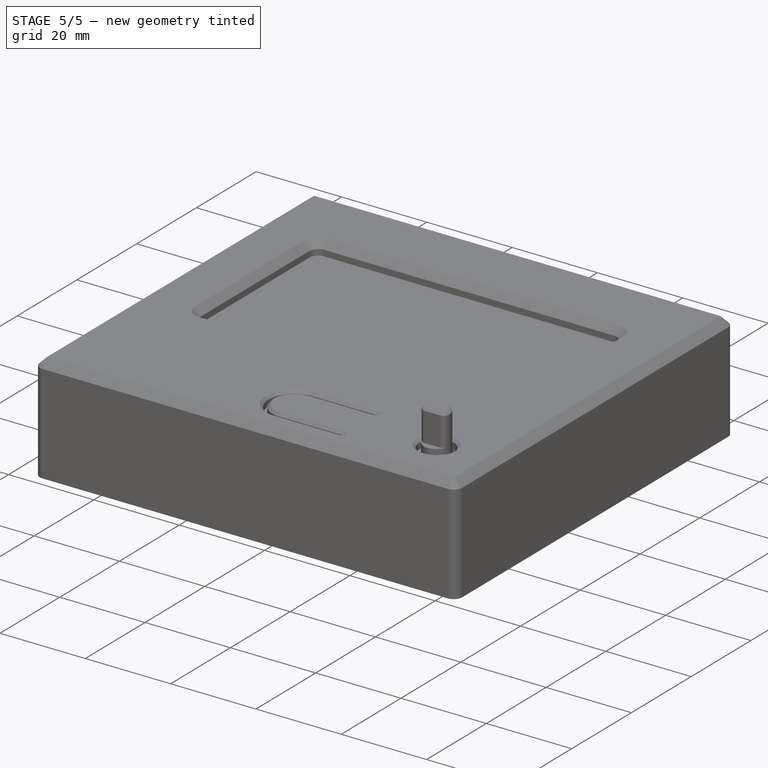
[diagram: stage 5 of 5 — iso view after this stage's code; geometry added in this stage tinted green]
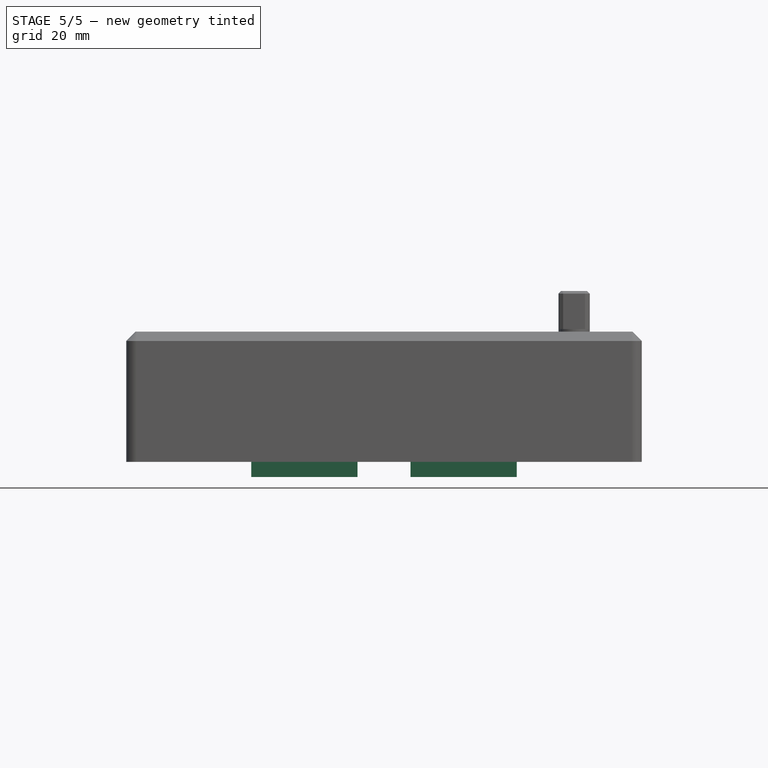
[diagram: stage 5 of 5 — front view after this stage's code; geometry added in this stage tinted green]
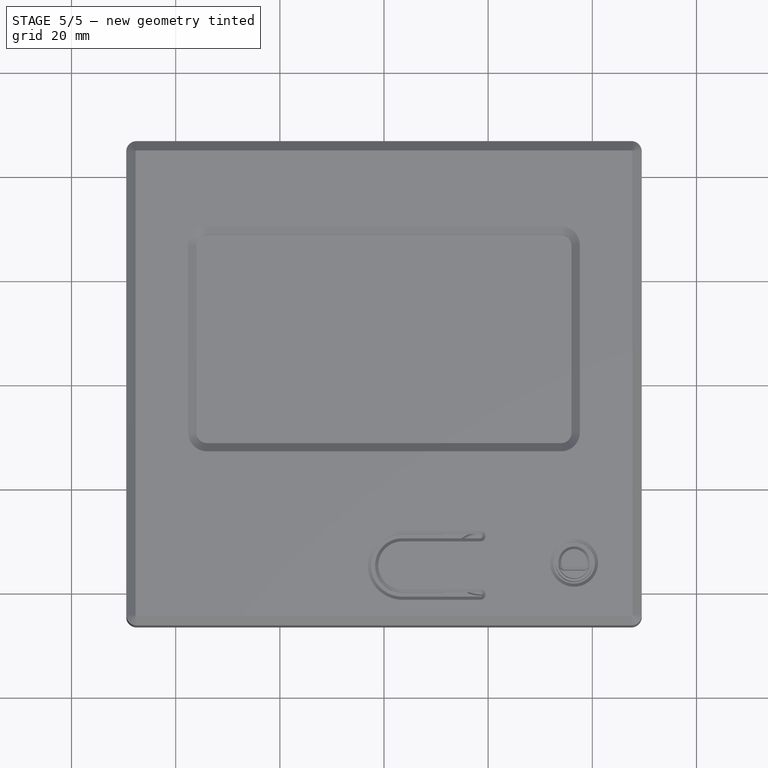
[diagram: stage 5 of 5 — top view after this stage's code; geometry added in this stage tinted green]
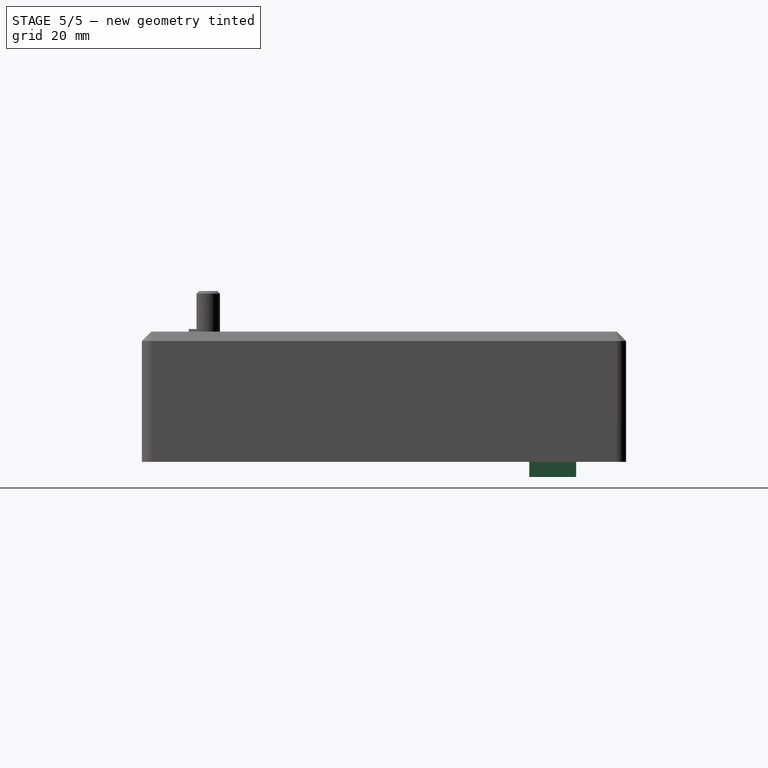
[diagram: stage 5 of 5 — right view after this stage's code; geometry added in this stage tinted green]
FEATURE [Sketcher::SketchObject] Sketch001002
  sketch-geometry (28):
    g0: LineSegment StartX=-46.5 StartY=39.5 StartZ=0 EndX=-42.5 EndY=39.5 EndZ=0
    g1: LineSegment StartX=-42.5 StartY=39.5 StartZ=0 EndX=-42.5 EndY=43.5 EndZ=0
    g2: LineSegment StartX=-42.5 StartY=43.5 StartZ=0 EndX=42.5 EndY=43.5 EndZ=0
    g3: LineSegment StartX=42.5 StartY=43.5 StartZ=0 EndX=42.5 EndY=39.5 EndZ=0
    g4: LineSegment StartX=42.5 StartY=39.5 StartZ=0 EndX=46.5 EndY=39.5 EndZ=0
    g5: LineSegment StartX=46.5 StartY=39.5 StartZ=0 EndX=46.5 EndY=-22.5 EndZ=0
    g6: LineSegment StartX=46.5 StartY=-22.5 StartZ=0 EndX=42.5 EndY=-22.5 EndZ=0
    g7: LineSegment StartX=42.5 StartY=-22.5 StartZ=0 EndX=42.5 EndY=-26.5 EndZ=0
    g8: LineSegment StartX=-42.5 StartY=-26.5 StartZ=0 EndX=-42.5 EndY=-22.5 EndZ=0
    g9: LineSegment StartX=-42.5 StartY=-22.5 StartZ=0 EndX=-46.5 EndY=-22.5 EndZ=0
    g10: LineSegment StartX=-43.5 StartY=-19.5 StartZ=0 EndX=-39.5 EndY=-19.5 EndZ=0
    g11: LineSegment StartX=-39.5 StartY=-19.5 StartZ=0 EndX=-39.5 EndY=-26.5 EndZ=0
    g12: LineSegment StartX=39.5 StartY=-26.5 StartZ=0 EndX=39.5 EndY=-19.5 EndZ=0
    g13: LineSegment StartX=39.5 StartY=-19.5 StartZ=0 EndX=43.5 EndY=-19.5 EndZ=0
    g14: LineSegment StartX=43.5 StartY=-19.5 StartZ=0 EndX=43.5 EndY=36.5 EndZ=0
    g15: LineSegment StartX=43.5 StartY=36.5 StartZ=0 EndX=39.5 EndY=36.5 EndZ=0
    g16: LineSegment StartX=39.5 StartY=36.5 StartZ=0 EndX=39.5 EndY=40.5 EndZ=0
    g17: LineSegment StartX=39.5 StartY=40.5 StartZ=0 EndX=-39.5 EndY=40.5 EndZ=0
    g18: LineSegment StartX=-39.5 StartY=40.5 StartZ=0 EndX=-39.5 EndY=36.5 EndZ=0
    g19: LineSegment StartX=-39.5 StartY=36.5 StartZ=0 EndX=-43.5 EndY=36.5 EndZ=0
    g20: LineSegment [constr] StartX=-46.5 StartY=43.5 StartZ=0 EndX=46.5 EndY=43.5 EndZ=0
    g21: LineSegment [constr] StartX=46.5 StartY=43.5 StartZ=0 EndX=46.5 EndY=-26.5 EndZ=0
    g22: LineSegment [constr] StartX=46.5 StartY=-26.5 StartZ=0 EndX=-46.5 EndY=-26.5 EndZ=0
    g23: LineSegment [constr] StartX=-46.5 StartY=-26.5 StartZ=0 EndX=-46.5 EndY=43.5 EndZ=0
    g24: LineSegment StartX=-42.5 StartY=-26.5 StartZ=0 EndX=-39.5 EndY=-26.5 EndZ=0
    g25: LineSegment StartX=42.5 StartY=-26.5 StartZ=0 EndX=39.5 EndY=-26.5 EndZ=0
    g26: LineSegment StartX=-46.5 StartY=39.5 StartZ=0 EndX=-46.5 EndY=-22.5 EndZ=0
    g27: LineSegment StartX=-43.5 StartY=36.5 StartZ=0 EndX=-43.5 EndY=-19.5 EndZ=0
  constraints (84):
    c: Horizontal(g0)
    c: Coincident(g0,g1)
    c: Vertical(g1)
    c: Coincident(g1,g2)
    c: Horizontal(g2)
    c: Coincident(g2,g3)
    c: Vertical(g3)
    c: Coincident(g3,g4)
    c: Horizontal(g4)
    c: Coincident(g4,g5)
    c: Vertical(g5)
    c: Coincident(g5,g6)
    c: Horizontal(g6)
    c: Coincident(g6,g7)
    c: Vertical(g7)
    c: Vertical(g8)
    c: Coincident(g8,g9)
    c: Horizontal(g9)
    c: Horizontal(g10)
    c: Coincident(g10,g11)
    c: Vertical(g11)
    c: Vertical(g12)
    c: Coincident(g12,g13)
    c: Horizontal(g13)
    c: Coincident(g13,g14)
    c: Vertical(g14)
    c: Coincident(g14,g15)
    c: Coincident(g15,g16)
    c: Coincident(g16,g17)
    c: Horizontal(g17)
    c: Coincident(g17,g18)
    c: Vertical(g18)
    c: Coincident(g18,g19)
    c: Horizontal(g19)
    c: Horizontal(g15)
    c: Vertical(g16)
    c: Coincident(g20,g21)
    c: Coincident(g21,g22)
    c: Coincident(g22,g23)
    c: Coincident(g23,g20)
    c: Horizontal(g20)
    c: Horizontal(g22)
    c: Vertical(g21)
    c: Vertical(g23)
    c: DistanceX(g20) = 93
    c: Symmetric(g20,g20,g-2)
    c: DistanceY(g-1,g20) = 43.5
    c: DistanceY(g21) = -70
    c: DistanceX(g0) = 4
    c: DistanceY(g1) = 4
    c: PointOnObject(g1,g20)
    c: PointOnObject(g0,g23)
    c: PointOnObject(g5,g21)
    c: PointOnObject(g7,g22)
    c: Equal(g9,g0)
    c: Equal(g9,g6)
    c: Equal(g4,g6)
    c: Equal(g3,g1)
    c: DistanceY(g8) = 4
    c: Equal(g8,g7)
    c: DistanceX(g10) = 4
    c: Equal(g19,g10)
    c: Equal(g11,g12)
    c: Distance(g17,g2) = 3
    c: Equal(g18,g16)
    c: Distance(g14,g5) = 3
    c: Equal(g13,g15)
    c: Distance(g12,g21) = 7
    c: Coincident(g24,g8)
    c: Coincident(g24,g11)
    c: Horizontal(g24)
    c: PointOnObject(g11,g22)
    c: Coincident(g25,g7)
    c: Coincident(g25,g12)
    c: Horizontal(g25)
    c: Vertical(g26)
    c: Vertical(g27)
    c: Coincident(g19,g27)
    c: Coincident(g27,g10)
    c: Coincident(g26,g9)
    c: Coincident(g0,g26)
    c: DistanceX(g19,g0) = -3
    c: DistanceY(g16) = 4
    c: DistanceY(g11) = -7
FEATURE [PartDesign::Pad] Pad001
  Length = 4.6
  Length2 = 100
  Sketch = -> Sketch001002
  Type = 0
FEATURE [Sketcher::SketchObject] Sketch001003
  ExternalGeometry = -> [Pad001]
  Placement = pos=(0,0,4.6) rot=(0,0,1;0rad)
  Support = -> Pad001 [Face26]
  sketch-geometry (4):
    g0: LineSegment StartX=-46.5 StartY=36.5 StartZ=0 EndX=-43.5 EndY=36.5 EndZ=0
    g1: LineSegment StartX=-43.5 StartY=36.5 StartZ=0 EndX=-43.5 EndY=-19.5 EndZ=0
    g2: LineSegment StartX=-43.5 StartY=-19.5 StartZ=0 EndX=-46.5 EndY=-19.5 EndZ=0
    g3: LineSegment StartX=-46.5 StartY=-19.5 StartZ=0 EndX=-46.5 EndY=36.5 EndZ=0
  constraints (11):
    c: Coincident(g0,g1)
    c: Coincident(g1,g2)
    c: Coincident(g2,g3)
    c: Coincident(g3,g0)
    c: Horizontal(g0)
    c: Horizontal(g2)
    c: Vertical(g1)
    c: Vertical(g3)
    c: Coincident(g1,g-4)
    c: Coincident(g0,g-3)
    c: PointOnObject(g0,g-5)
FEATURE [PartDesign::Pocket] Pocket
  Length = 2.6
  Sketch = -> Sketch001003
  Type = 0
FEATURE [PartDesign::Fillet] Fillet
  Base = -> Pocket [Edge68,Edge65,Edge2,Edge52]
  Radius = 1.5
FEATURE [PartDesign::Fillet] Fillet001  label="Spacer"
  Base = -> Fillet [Edge89,Edge88,Edge82,Edge72]
  Radius = 2.9
FEATURE [Sketcher::SketchObject] Sketch001014
  ExternalGeometry = -> [Fillet003]
  Placement = pos=(0,0,15.2) rot=(0,0,1;0rad)
  Support = -> Fillet003 [Face8]
  sketch-geometry (8):
    g0: LineSegment StartX=-34 StartY=28.5 StartZ=0 EndX=34 EndY=28.5 EndZ=0
    g1: LineSegment StartX=36 StartY=26.5 StartZ=0 EndX=36 EndY=-9.5 EndZ=0
    g2: LineSegment StartX=34 StartY=-11.5 StartZ=0 EndX=-34 EndY=-11.5 EndZ=0
    g3: LineSegment StartX=-36 StartY=-9.5 StartZ=0 EndX=-36 EndY=26.5 EndZ=0
    g4: ArcOfCircle CenterX=-34 CenterY=26.5 CenterZ=0 NormalX=0 NormalY=0 NormalZ=1 Radius=2 StartAngle=1.5708 EndAngle=3.14159
    g5: ArcOfCircle CenterX=34 CenterY=26.5 CenterZ=0 NormalX=0 NormalY=0 NormalZ=1 Radius=2 StartAngle=0 EndAngle=1.5708
    g6: ArcOfCircle CenterX=34 CenterY=-9.5 CenterZ=0 NormalX=0 NormalY=0 NormalZ=1 Radius=2 StartAngle=4.71239 EndAngle=6.28319
    g7: ArcOfCircle CenterX=-34 CenterY=-9.5 CenterZ=0 NormalX=0 NormalY=0 NormalZ=1 Radius=2 StartAngle=3.14159 EndAngle=4.71239
  constraints (20):
    c: Horizontal(g0)
    c: Horizontal(g2)
    c: Vertical(g1)
    c: Vertical(g3)
    c: Tangent(g0,g4)
    c: Tangent(g3,g4)
    c: Tangent(g0,g5)
    c: Tangent(g1,g5)
    c: Tangent(g1,g6)
    c: Tangent(g2,g6)
    c: Tangent(g2,g7)
    c: Tangent(g3,g7)
    c: Radius(g4) = 2
    c: Equal(g4,g5)
    c: Equal(g5,g6)
    c: Equal(g6,g7)
    c: DistanceY(g1) = -36
    c: DistanceX(g0) = 68
    c: DistanceY(g-3,g0) = -5.6
    c: DistanceX(g1,g-4) = 3.3
FEATURE [Sketcher::SketchObject] Sketch001015
  ExternalGeometry = -> [Fillet002]
  Placement = pos=(0,0,-1.7) rot=(1,0,0;3.14159rad)
  Support = -> Fillet002 [Face21]
  sketch-geometry (4):
    g0: LineSegment StartX=-46.5 StartY=5 StartZ=0 EndX=-20.9 EndY=5 EndZ=0
    g1: LineSegment StartX=-20.9 StartY=5 StartZ=0 EndX=-20.9 EndY=-21.5 EndZ=0
    g2: LineSegment StartX=-20.9 StartY=-21.5 StartZ=0 EndX=-46.5 EndY=-21.5 EndZ=0
    g3: LineSegment StartX=-46.5 StartY=-21.5 StartZ=0 EndX=-46.5 EndY=5 EndZ=0
  constraints (12):
    c: Coincident(g0,g1)
    c: Coincident(g1,g2)
    c: Coincident(g2,g3)
    c: Coincident(g3,g0)
    c: Horizontal(g0)
    c: Horizontal(g2)
    c: Vertical(g1)
    c: Vertical(g3)
    c: DistanceY(g1) = -26.5
    c: DistanceX(g0) = 25.6
    c: PointOnObject(g2,g-3)
    c: DistanceY(g-3,g2) = 22
FEATURE [PartDesign::Pad] Pad011  label="sdcard"
  Length = 3.8
  Length2 = 100
  Sketch = -> Sketch001015
  Type = 0
FEATURE [Sketcher::SketchObject] Sketch001016
  ExternalGeometry = -> [Pad011]
  Placement = pos=(0,0,-1.7) rot=(1,0,0;3.14159rad)
  Support = -> Pad011 [Face6]
  sketch-geometry (8):
    g0: LineSegment StartX=-25.5 StartY=-27.9 StartZ=0 EndX=-5.1 EndY=-27.9 EndZ=0
    g1: LineSegment StartX=-5.1 StartY=-27.9 StartZ=0 EndX=-5.1 EndY=-36.9 EndZ=0
    g2: LineSegment StartX=-5.1 StartY=-36.9 StartZ=0 EndX=-25.5 EndY=-36.9 EndZ=0
    g3: LineSegment StartX=-25.5 StartY=-36.9 StartZ=0 EndX=-25.5 EndY=-27.9 EndZ=0
    g4: LineSegment StartX=5.1 StartY=-27.9 StartZ=0 EndX=25.5 EndY=-27.9 EndZ=0
    g5: LineSegment StartX=25.5 StartY=-27.9 StartZ=0 EndX=25.5 EndY=-36.9 EndZ=0
    g6: LineSegment StartX=25.5 StartY=-36.9 StartZ=0 EndX=5.1 EndY=-36.9 EndZ=0
    g7: LineSegment StartX=5.1 StartY=-36.9 StartZ=0 EndX=5.1 EndY=-27.9 EndZ=0
  constraints (24):
    c: Coincident(g0,g1)
    c: Coincident(g1,g2)
    c: Coincident(g2,g3)
    c: Coincident(g3,g0)
    c: Horizontal(g0)
    c: Horizontal(g2)
    c: Vertical(g1)
    c: Vertical(g3)
    c: Coincident(g4,g5)
    c: Coincident(g5,g6)
    c: Coincident(g6,g7)
    c: Coincident(g7,g4)
    c: Horizontal(g4)
    c: Horizontal(g6)
    c: Vertical(g5)
    c: Vertical(g7)
    c: DistanceX(g4) = 20.4
    c: DistanceY(g5) = -9
    c: Equal(g1,g5)
    c: Equal(g0,g4)
    c: Tangent(g2,g6)
    c: DistanceX(g0,g4) = 10.2
    c: Distance(g2,g-3) = 21
    c: DistanceY(g2,g-3) = -6.6
FEATURE [PartDesign::Pad] Pad012  label="Electrical-Connectors-Pad"
  Length = 9
  Length2 = 100
  Sketch = -> Sketch001016
  Type = 0
FEATURE [Sketcher::SketchObject] Sketch001017
  ExternalGeometry = -> [Pad012]
  Placement = pos=(0,0,-10.7) rot=(1,0,0;3.14159rad)
  Support = -> Pad012 [Face24]
  sketch-geometry (16):
    g0: LineSegment StartX=-24.35 StartY=-29.05 StartZ=0 EndX=-6.25 EndY=-29.05 EndZ=0
    g1: LineSegment StartX=-6.25 StartY=-29.05 StartZ=0 EndX=-6.25 EndY=-35.75 EndZ=0
    g2: LineSegment StartX=-6.25 StartY=-35.75 StartZ=0 EndX=-13.05 EndY=-35.75 EndZ=0
    g3: LineSegment StartX=-13.05 StartY=-35.75 StartZ=0 EndX=-13.05 EndY=-37.75 EndZ=0
    g4: LineSegment StartX=-13.05 StartY=-37.75 StartZ=0 EndX=-17.55 EndY=-37.75 EndZ=0
    g5: LineSegment StartX=-17.55 StartY=-37.75 StartZ=0 EndX=-17.55 EndY=-35.75 EndZ=0
    g6: LineSegment StartX=-17.55 StartY=-35.75 StartZ=0 EndX=-24.35 EndY=-35.75 EndZ=0
    g7: LineSegment StartX=-24.35 StartY=-35.75 StartZ=0 EndX=-24.35 EndY=-29.05 EndZ=0
    g8: LineSegment StartX=6.25 StartY=-29.05 StartZ=0 EndX=24.35 EndY=-29.05 EndZ=0
    g9: LineSegment StartX=24.35 StartY=-29.05 StartZ=0 EndX=24.35 EndY=-35.75 EndZ=0
    g10: LineSegment StartX=24.35 StartY=-35.75 StartZ=0 EndX=17.55 EndY=-35.75 EndZ=0
    g11: LineSegment StartX=17.55 StartY=-35.75 StartZ=0 EndX=17.55 EndY=-37.75 EndZ=0
    g12: LineSegment StartX=17.55 StartY=-37.75 StartZ=0 EndX=13.05 EndY=-37.75 EndZ=0
    g13: LineSegment StartX=13.05 StartY=-37.75 StartZ=0 EndX=13.05 EndY=-35.75 EndZ=0
    g14: LineSegment StartX=13.05 StartY=-35.75 StartZ=0 EndX=6.25 EndY=-35.75 EndZ=0
    g15: LineSegment StartX=6.25 StartY=-35.75 StartZ=0 EndX=6.25 EndY=-29.05 EndZ=0
  constraints (48):
    c: Horizontal(g0)
    c: Coincident(g0,g1)
    c: Coincident(g1,g2)
    c: Coincident(g2,g3)
    c: Coincident(g3,g4)
    c: Horizontal(g4)
    c: Coincident(g4,g5)
    c: Coincident(g5,g6)
    c: Coincident(g6,g7)
    c: Coincident(g0,g7)
    c: Vertical(g7)
    c: Vertical(g1)
    c: Vertical(g5)
    c: Horizontal(g2)
    c: Horizontal(g6)
    c: Vertical(g3)
    c: DistanceY(g1) = -6.7
    c: DistanceX(g0) = 18.1
    c: Equal(g2,g6)
    c: DistanceX(g4) = -4.5
    c: DistanceY(g3) = -2
    c: Equal(g7,g1)
    c: DistanceX(g0,g-3) = -1.15
    c: DistanceY(g0,g-3) = 1.15
    c: Horizontal(g8)
    c: Coincident(g8,g9)
    c: Vertical(g9)
    c: Coincident(g9,g10)
    c: Horizontal(g10)
    c: Coincident(g10,g11)
    c: Vertical(g11)
    c: Coincident(g11,g12)
    c: Horizontal(g12)
    c: Coincident(g12,g13)
    c: Coincident(g13,g14)
    c: Coincident(g14,g15)
    c: Coincident(g15,g8)
    c: Vertical(g15)
    c: Horizontal(g14)
    c: Vertical(g13)
    c: Equal(g4,g12)
    c: Equal(g14,g10)
    c: Equal(g0,g8)
    c: Equal(g15,g1)
    c: Equal(g3,g13)
    c: Equal(g15,g9)
    c: DistanceX(g8,g-5) = -1.15
    c: DistanceY(g-5,g8) = -1.15
FEATURE [PartDesign::Pocket] Pocket003  label="Electrical-Connectors-Pocket"
  Length = 6.9
  Sketch = -> Sketch001017
  Type = 0
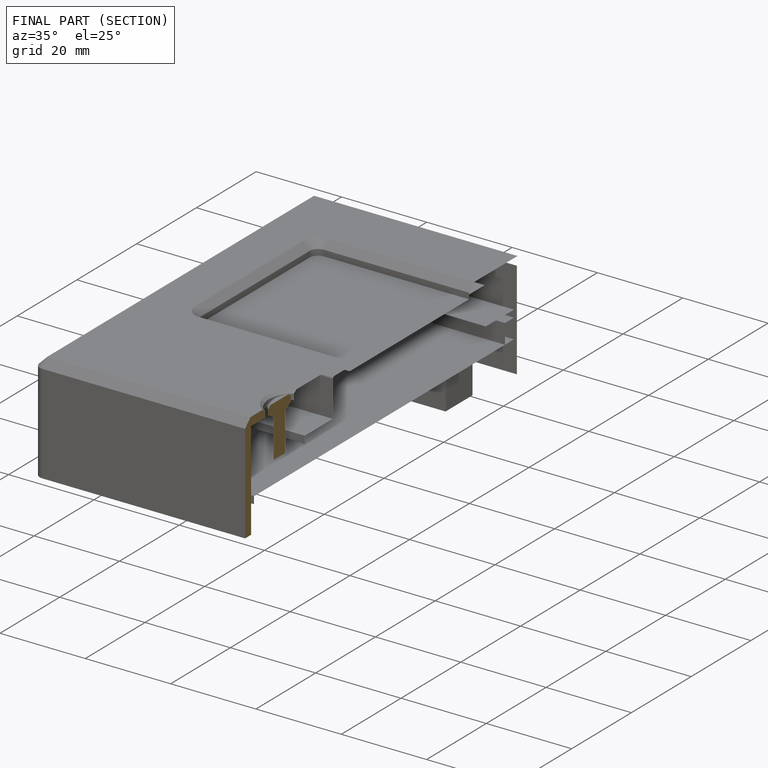
[diagram: finished part — half-section view (interior)]
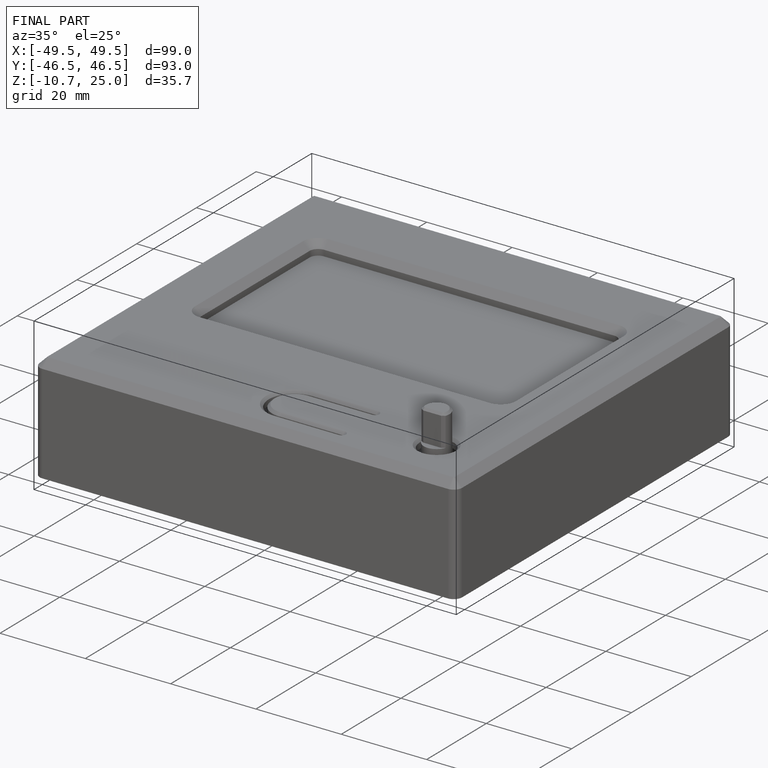
[diagram: finished part — iso view with bounding-box wireframe]
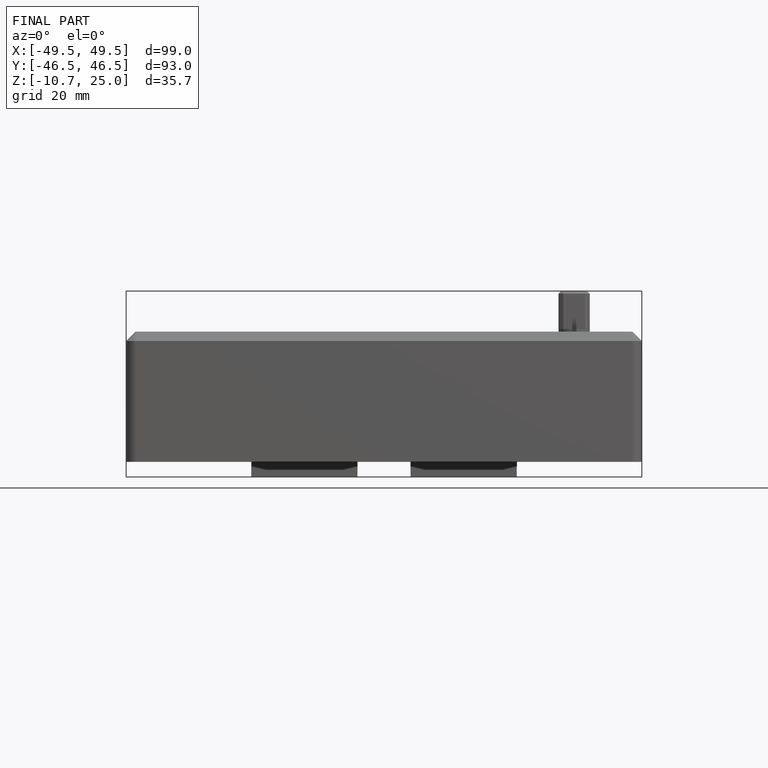
[diagram: finished part — front view with bounding-box wireframe]
